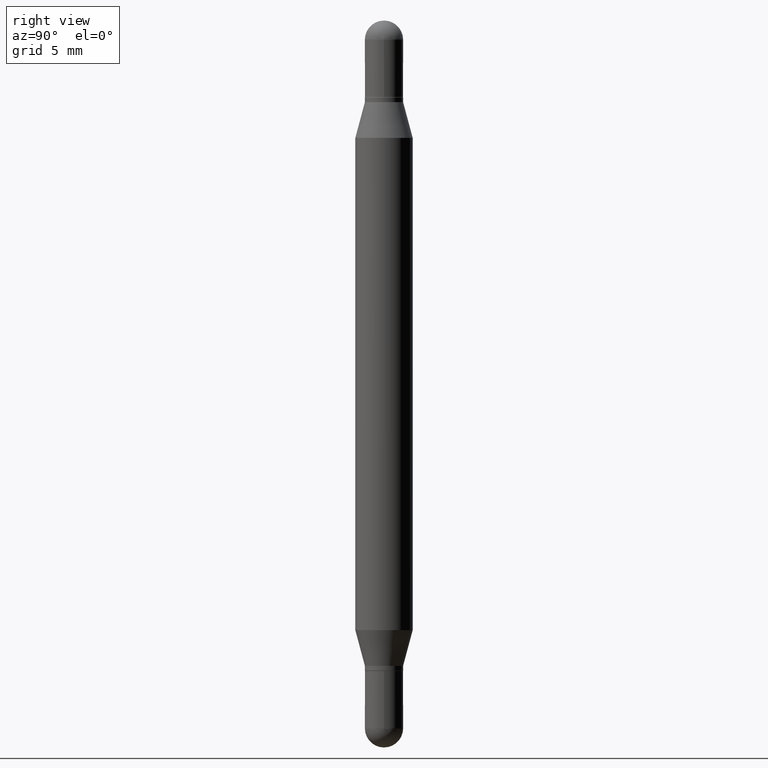
[diagram: clean part render]
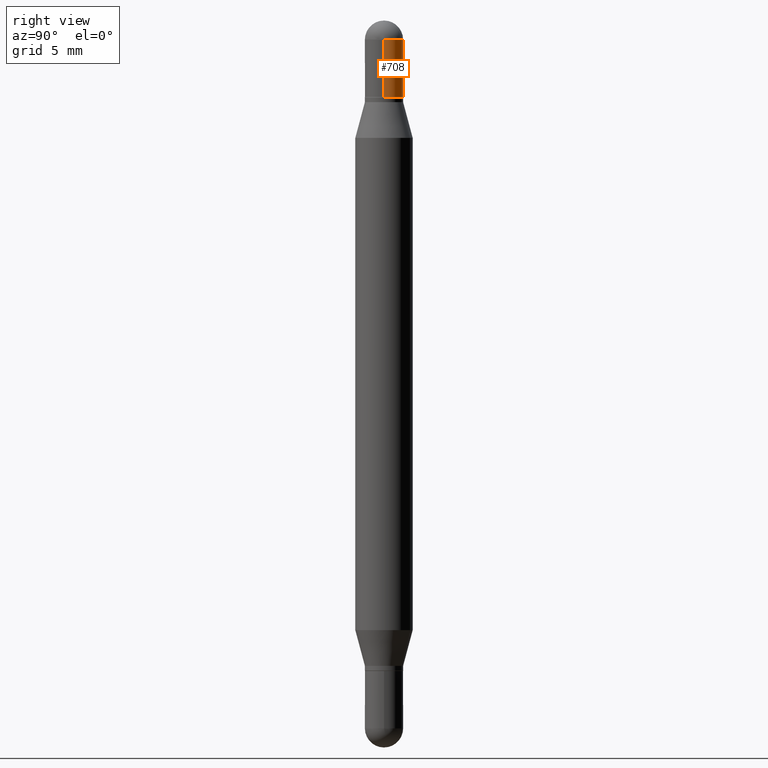
[diagram: same view with one face highlighted and labeled with its STEP entity id]
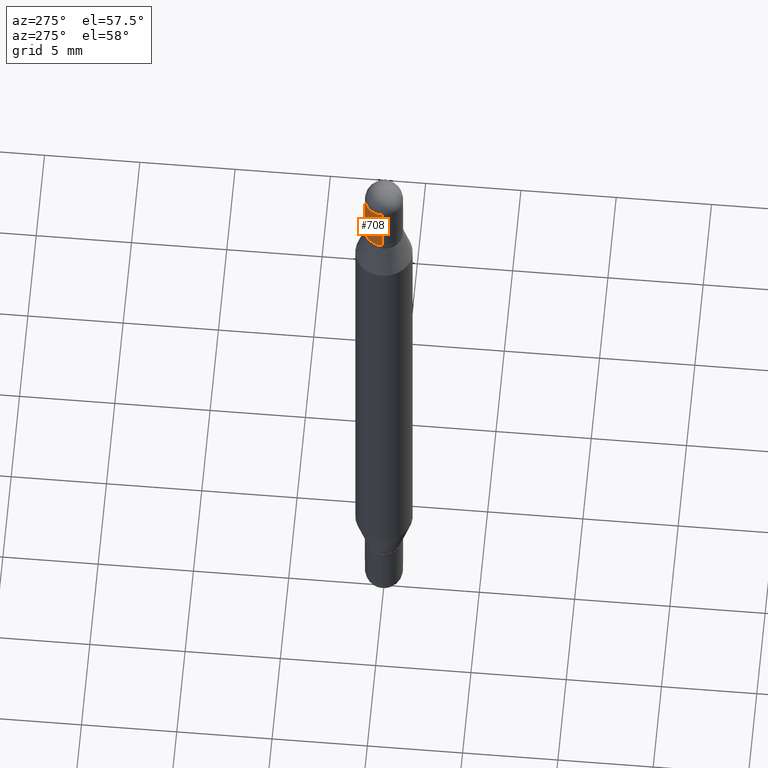
[diagram: same view with one face highlighted and labeled with its STEP entity id]
A machine part, right view. The second image highlights one B-rep face of the part: STEP entity #708.
A second angle (auxiliary view) of the same face is appended — the face is thin or edge-on in the first view.
In plain terms, the highlighted cylindrical surface (edge-blend (fillet) strip) has radius 0.9995 mm, axis along (-0, -0, -1).
Its self-contained STEP definition (entity closure, byte-faithful):
#4 = DIRECTION ( 'NONE',  ( -2.445468806185136597E-29, -3.479614466977828254E-15, -1.000000000000000000 ) ) ;
#11 = CARTESIAN_POINT ( 'NONE',  ( 3.562436683410197746E-29, -1.457998427744287112E-16, -0.03934999999999994752 ) ) ;
#40 = AXIS2_PLACEMENT_3D ( 'NONE', #807, #631, #390 ) ;
#58 = EDGE_CURVE ( 'NONE', #625, #575, #853, .T. ) ;
#74 = CARTESIAN_POINT ( 'NONE',  ( 0.03935000000000000303, -5.489507798911334023E-15, -1.496099999999999985 ) ) ;
#78 = DIRECTION ( 'NONE',  ( 1.000000000000000000, -6.982962677686269077E-15, 0.000000000000000000 ) ) ;
#110 = VECTOR ( 'NONE', #839, 39.37007874015748143 ) ;
#129 = LINE ( 'NONE', #812, #484 ) ;
#233 = CARTESIAN_POINT ( 'NONE',  ( -0.03935000000000000303, -8.139747119883290454E-17, -0.03934999999999994752 ) ) ;
#237 = CARTESIAN_POINT ( 'NONE',  ( 2.699605962123452963E-16, 0.03934999999999985038, -0.03935000000000008630 ) ) ;
#263 = AXIS2_PLACEMENT_3D ( 'NONE', #266, #4, #78 ) ;
#266 = CARTESIAN_POINT ( 'NONE',  ( 0.000000000000000000, -5.214728217544379106E-15, -1.496099999999999985 ) ) ;
#273 = DIRECTION ( 'NONE',  ( 2.445468806185136597E-29, 3.479614466977828254E-15, 1.000000000000000000 ) ) ;
#275 = ORIENTED_EDGE ( 'NONE', *, *, #969, .F. ) ;
#324 = VERTEX_POINT ( 'NONE', #366 ) ;
#327 = EDGE_CURVE ( 'NONE', #987, #324, #690, .T. ) ;
#348 = CARTESIAN_POINT ( 'NONE',  ( 0.03935000000000000303, -8.316958734148117577E-16, -0.1574999999999998901 ) ) ;
#352 = ORIENTED_EDGE ( 'NONE', *, *, #58, .F. ) ;
#366 = CARTESIAN_POINT ( 'NONE',  ( -0.03935000000000000303, -8.139747119883315106E-17, -0.1574999999999998901 ) ) ;
#390 = DIRECTION ( 'NONE',  ( 1.000000000000000000, -6.982962677686266711E-15, 0.000000000000000000 ) ) ;
#398 = CARTESIAN_POINT ( 'NONE',  ( 0.03935000000000000303, -6.261376487780972369E-16, -0.03934999999999994752 ) ) ;
#463 = DIRECTION ( 'NONE',  ( -2.445468806185136877E-29, -3.479614466977828648E-15, -1.000000000000000000 ) ) ;
#484 = VECTOR ( 'NONE', #463, 39.37007874015748143 ) ;
#518 = FACE_OUTER_BOUND ( 'NONE', #726, .T. ) ;
#533 = EDGE_CURVE ( 'NONE', #625, #987, #935, .T. ) ;
#575 = VERTEX_POINT ( 'NONE', #237 ) ;
#607 = DIRECTION ( 'NONE',  ( 1.000000000000000000, -6.982962677686266711E-15, 0.000000000000000000 ) ) ;
#615 = CARTESIAN_POINT ( 'NONE',  ( 3.273504543959423913E-29, -5.569162920478571366E-16, -0.1574999999999998901 ) ) ;
#625 = VERTEX_POINT ( 'NONE', #398 ) ;
#631 = DIRECTION ( 'NONE',  ( 2.445468806185136597E-29, 3.479614466977828254E-15, 1.000000000000000000 ) ) ;
#635 = ORIENTED_EDGE ( 'NONE', *, *, #1075, .F. ) ;
#647 = VERTEX_POINT ( 'NONE', #233 ) ;
#675 = CIRCLE ( 'NONE', #1014, 0.03935000000000000303 ) ;
#690 = CIRCLE ( 'NONE', #1102, 0.03935000000000000303 ) ;
#708 = ADVANCED_FACE ( 'NONE', ( #518 ), #875, .T. ) ;
#726 = EDGE_LOOP ( 'NONE', ( #635, #275, #352, #1047, #826 ) ) ;
#807 = CARTESIAN_POINT ( 'NONE',  ( 3.562436683410197746E-29, -1.457998427744287112E-16, -0.03934999999999994752 ) ) ;
#812 = CARTESIAN_POINT ( 'NONE',  ( -0.03935000000000000303, -4.944767621332070245E-15, -1.496099999999999985 ) ) ;
#826 = ORIENTED_EDGE ( 'NONE', *, *, #327, .T. ) ;
#839 = DIRECTION ( 'NONE',  ( -2.445468806185136877E-29, -3.479614466977828648E-15, -1.000000000000000000 ) ) ;
#853 = CIRCLE ( 'NONE', #40, 0.03935000000000000303 ) ;
#875 = CYLINDRICAL_SURFACE ( 'NONE', #263, 0.03935000000000000303 ) ;
#935 = LINE ( 'NONE', #74, #110 ) ;
#969 = EDGE_CURVE ( 'NONE', #575, #647, #675, .T. ) ;
#971 = DIRECTION ( 'NONE',  ( 1.000000000000000000, -6.982962677686266711E-15, 0.000000000000000000 ) ) ;
#976 = DIRECTION ( 'NONE',  ( 2.445468806185136597E-29, 3.479614466977828254E-15, 1.000000000000000000 ) ) ;
#987 = VERTEX_POINT ( 'NONE', #348 ) ;
#1014 = AXIS2_PLACEMENT_3D ( 'NONE', #11, #273, #607 ) ;
#1047 = ORIENTED_EDGE ( 'NONE', *, *, #533, .T. ) ;
#1075 = EDGE_CURVE ( 'NONE', #647, #324, #129, .T. ) ;
#1102 = AXIS2_PLACEMENT_3D ( 'NONE', #615, #976, #971 ) ;